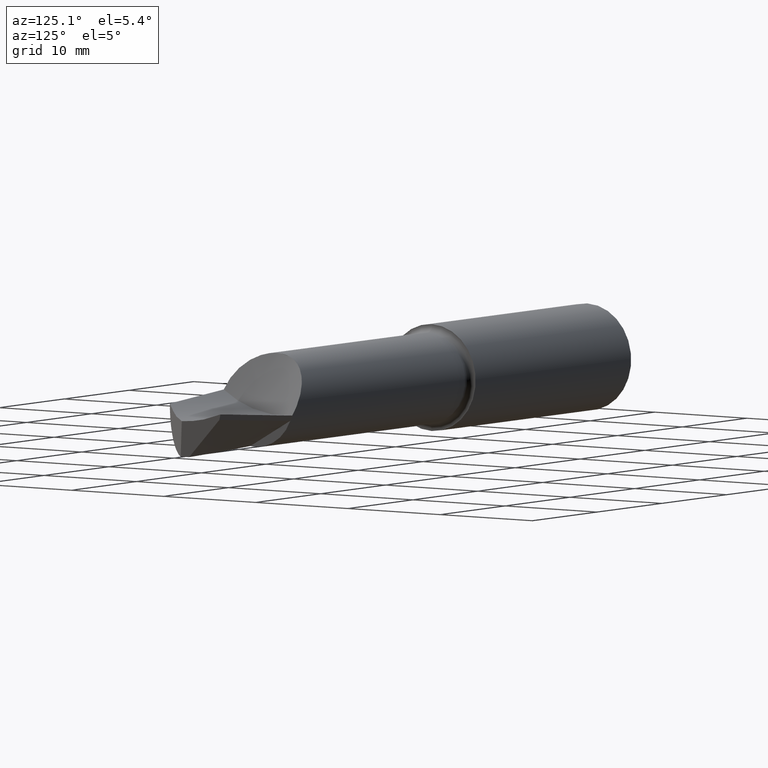
[diagram: clean part render]
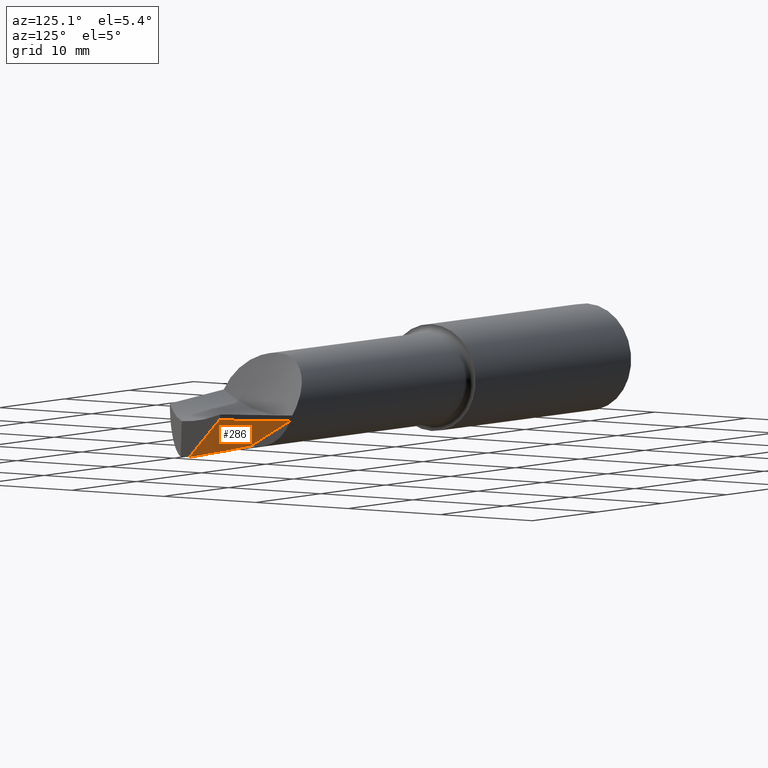
[diagram: same view with one face highlighted and labeled with its STEP entity id]
A machine part, auxiliary view. The second image highlights one B-rep face of the part: STEP entity #286.
In plain terms, the highlighted face is a freeform B-spline surface patch.
Its self-contained STEP definition (entity closure, byte-faithful):
#2 = CARTESIAN_POINT ( 'NONE',  ( -2.201205556468320612, 0.04404805174392815992, 0.2637359333928429028 ) ) ;
#7 = CARTESIAN_POINT ( 'NONE',  ( -0.5557836117043166713, -0.1918465372176925698, 0.1410986122333059978 ) ) ;
#29 = CARTESIAN_POINT ( 'NONE',  ( 2.029999999999999805, 0.03415864300232435147, -0.1261169229778109357 ) ) ;
#31 = EDGE_LOOP ( 'NONE', ( #83, #511, #666, #214, #54 ) ) ;
#43 = CARTESIAN_POINT ( 'NONE',  ( 2.479056345522095750, 0.03158535943386608924, -0.1600000000000001976 ) ) ;
#51 = CARTESIAN_POINT ( 'NONE',  ( 2.087992314429198526, -0.01486618112345823410, -0.1594768838119421661 ) ) ;
#54 = ORIENTED_EDGE ( 'NONE', *, *, #849, .F. ) ;
#60 = CARTESIAN_POINT ( 'NONE',  ( -1.966145278644757743, -0.03787375675492851701, -0.001615801746071663693 ) ) ;
#66 = CARTESIAN_POINT ( 'NONE',  ( -1.966145278644758188, 0.002243632532145724799, 0.2626065452853905136 ) ) ;
#70 = CARTESIAN_POINT ( 'NONE',  ( 2.264938125322896845, -0.04847510416526038673, -0.2055552617690547534 ) ) ;
#75 = CARTESIAN_POINT ( 'NONE',  ( 1.559758888707100333, 0.1147457709940158943, -0.09127471199649461742 ) ) ;
#83 = ORIENTED_EDGE ( 'NONE', *, *, #98, .F. ) ;
#98 = EDGE_CURVE ( 'NONE', #540, #402, #502, .T. ) ;
#129 = CARTESIAN_POINT ( 'NONE',  ( 0.8545780552342985281, 0.05695394078585683945, -0.1103443192637500736 ) ) ;
#132 = CARTESIAN_POINT ( 'NONE',  ( 1.559758888707099889, -0.1436434323715040096, -0.1595233250096872446 ) ) ;
#140 = CARTESIAN_POINT ( 'NONE',  ( -2.906385990919486684, -0.003112771623335201018, 0.02094499331524667454 ) ) ;
#141 = EDGE_CURVE ( 'NONE', #332, #540, #387, .T. ) ;
#167 = CARTESIAN_POINT ( 'NONE',  ( 2.295506850694329692, 0.01179554104795521759, -0.1600000000000001976 ) ) ;
#171 = CARTESIAN_POINT ( 'NONE',  ( 2.491267630952950007, 0.1267754620488672213, -0.06731619212322126344 ) ) ;
#173 = CARTESIAN_POINT ( 'NONE',  ( 2.029999999999999805, 0.07211162978868032591, -0.1043107480893994965 ) ) ;
#175 = CARTESIAN_POINT ( 'NONE',  ( 2.485134547629457735, 0.07941657633306051234, -0.1138983581142080093 ) ) ;
#187 = CARTESIAN_POINT ( 'NONE',  ( 2.030000000000000249, -0.02213587642817147969, -0.1584613611413102918 ) ) ;
#190 = VERTEX_POINT ( 'NONE', #818 ) ;
#193 = CARTESIAN_POINT ( 'NONE',  ( 0.6195177774123533654, -0.2195753196757056491, -0.03852676495521192152 ) ) ;
#199 = CARTESIAN_POINT ( 'NONE',  ( 0.6195177774123533654, 0.03790681170190750293, -0.1101214967121642158 ) ) ;
#214 = ORIENTED_EDGE ( 'NONE', *, *, #693, .T. ) ;
#259 = CARTESIAN_POINT ( 'NONE',  ( 2.029879444352586049, -0.08296511960219035697, -0.1952243736096476445 ) ) ;
#264 = CARTESIAN_POINT ( 'NONE',  ( -1.496024722997123746, -0.04544741256673074520, -0.02302504186817388304 ) ) ;
#271 = CARTESIAN_POINT ( 'NONE',  ( -1.260964445173648585, -0.1108984522853270621, 0.2236640909299403568 ) ) ;
#276 = CARTESIAN_POINT ( 'NONE',  ( -2.906381934304444581, 0.1649569871164089652, 0.2287319165144827415 ) ) ;
#281 = CARTESIAN_POINT ( 'NONE',  ( 2.500000000000000000, 0.1737516060753419855, -0.02000000000000000042 ) ) ;
#286 = ADVANCED_FACE ( 'NONE', ( #482 ), #794, .T. ) ;
#331 = CARTESIAN_POINT ( 'NONE',  ( -0.08566305605693792791, -0.01017841397115147421, -0.09365412058262138906 ) ) ;
#332 = VERTEX_POINT ( 'NONE', #421 ) ;
#339 = CARTESIAN_POINT ( 'NONE',  ( -2.671326112113873830, 0.1254329420345078605, 0.2467993252375397517 ) ) ;
#342 = CARTESIAN_POINT ( 'NONE',  ( 2.497456087975408412, 0.1736415813899027105, -0.02024803729317455059 ) ) ;
#344 = CARTESIAN_POINT ( 'NONE',  ( 0.8545780552342985281, -0.2077665825601127392, -0.07365783519246565936 ) ) ;
#346 = CARTESIAN_POINT ( 'NONE',  ( -0.7908438895279201741, -0.03928115723829588013, -0.06062728964153517308 ) ) ;
#387 = B_SPLINE_CURVE_WITH_KNOTS ( 'NONE', 3,
 ( #653, #167, #391, #442 ),
 .UNSPECIFIED., .F., .F.,
 ( 4, 4 ),
 ( 0.000000000000000000, 0.007033633581061733524 ),
 .UNSPECIFIED. ) ;
#391 = CARTESIAN_POINT ( 'NONE',  ( 2.387242545245383596, 0.02203300127090785168, -0.1600000000000001976 ) ) ;
#392 = B_SPLINE_CURVE_WITH_KNOTS ( 'NONE', 3,
 ( #342, #752, #806, #408 ),
 .UNSPECIFIED., .F., .F.,
 ( 4, 4 ),
 ( 0.0004509272984384687629, 0.08331185464154465536 ),
 .UNSPECIFIED. ) ;
#402 = VERTEX_POINT ( 'NONE', #562 ) ;
#406 = CARTESIAN_POINT ( 'NONE',  ( -0.5557836117043167823, -0.03198789906975515324, -0.07306970802803701426 ) ) ;
#408 = CARTESIAN_POINT ( 'NONE',  ( 2.030000000000000249, 0.1480175986258071008, -0.06069839007043474621 ) ) ;
#410 = CARTESIAN_POINT ( 'NONE',  ( -0.7908438895279200631, -0.1692113414281543049, 0.1729128585781273264 ) ) ;
#417 = CARTESIAN_POINT ( 'NONE',  ( -0.08566305605693796954, -0.2201275864905185842, 0.07170669264838248902 ) ) ;
#421 = CARTESIAN_POINT ( 'NONE',  ( 2.203948786660800074, -1.067128122525102820E-18, -0.1600000000000001976 ) ) ;
#442 = CARTESIAN_POINT ( 'NONE',  ( 2.479056345522095750, 0.03158535943386608924, -0.1600000000000001976 ) ) ;
#447 = CARTESIAN_POINT ( 'NONE',  ( 2.030000000000000249, 0.1100646149965093940, -0.08250457045360956587 ) ) ;
#451 = CARTESIAN_POINT ( 'NONE',  ( 2.030000000000000249, -0.02213587642817147969, -0.1584613611413102918 ) ) ;
#466 = CARTESIAN_POINT ( 'NONE',  ( 0.1493972217667058622, -0.2257616261417143277, 0.03418156597823445580 ) ) ;
#482 = FACE_OUTER_BOUND ( 'NONE', #31, .T. ) ;
#502 = B_SPLINE_CURVE_WITH_KNOTS ( 'NONE', 3,
 ( #43, #175, #171, #793 ),
 .UNSPECIFIED., .F., .F.,
 ( 4, 4 ),
 ( 4.448857579721098889E-05, 0.005127675119736437720 ),
 .UNSPECIFIED. ) ;
#511 = ORIENTED_EDGE ( 'NONE', *, *, #141, .F. ) ;
#531 = VERTEX_POINT ( 'NONE', #825 ) ;
#533 = CARTESIAN_POINT ( 'NONE',  ( 2.145972836415287244, -0.007469114906849857148, -0.1600000000000001421 ) ) ;
#540 = VERTEX_POINT ( 'NONE', #892 ) ;
#543 = CARTESIAN_POINT ( 'NONE',  ( 2.500000000000000000, -0.01359839392465584870, -0.2073499999999999510 ) ) ;
#548 = CARTESIAN_POINT ( 'NONE',  ( -3.141446667761254918, 0.1991586739133277828, 0.2022514740950265288 ) ) ;
#562 = CARTESIAN_POINT ( 'NONE',  ( 2.497456087975408412, 0.1736415813899027105, -0.02024803729317455059 ) ) ;
#578 = CARTESIAN_POINT ( 'NONE',  ( 2.030000000000000249, 0.1480175986258071008, -0.06069839007043474621 ) ) ;
#604 = CARTESIAN_POINT ( 'NONE',  ( -2.671326112113873830, -0.01348536854288557955, 0.01849129519839664074 ) ) ;
#609 = CARTESIAN_POINT ( 'NONE',  ( 0.1493972217667058899, 0.004329261635149571005, -0.1017634117003439476 ) ) ;
#611 = EDGE_CURVE ( 'NONE', #190, #332, #815, .T. ) ;
#615 = CARTESIAN_POINT ( 'NONE',  ( 2.264936955703512389, 0.1636016042029876938, -0.04293213474631984300 ) ) ;
#624 = CARTESIAN_POINT ( 'NONE',  ( -2.201205556468320612, -0.03088075054255186996, 0.007204204006480083473 ) ) ;
#653 = CARTESIAN_POINT ( 'NONE',  ( 2.203948786660800074, -1.067128122525102820E-18, -0.1600000000000001976 ) ) ;
#666 = ORIENTED_EDGE ( 'NONE', *, *, #611, .F. ) ;
#682 = CARTESIAN_POINT ( 'NONE',  ( -1.260964445173648585, -0.04600744313430748383, -0.03558870177511543748 ) ) ;
#686 = CARTESIAN_POINT ( 'NONE',  ( -1.496024722997123524, -0.07525414341635636162, 0.2425581134524845139 ) ) ;
#693 = EDGE_CURVE ( 'NONE', #190, #531, #883, .T. ) ;
#725 = CARTESIAN_POINT ( 'NONE',  ( 2.030000000000000249, -0.003371036232000557218, -0.1476798824253084119 ) ) ;
#750 = CARTESIAN_POINT ( 'NONE',  ( 1.324698610885074235, 0.09538978194470938698, -0.1009276724151043358 ) ) ;
#752 = CARTESIAN_POINT ( 'NONE',  ( 2.341635779685364405, 0.1668913797430702783, -0.03543228680233295735 ) ) ;
#758 = CARTESIAN_POINT ( 'NONE',  ( 2.029879444352586049, 0.1488699054047887271, -0.06227560613148143409 ) ) ;
#793 = CARTESIAN_POINT ( 'NONE',  ( 2.497456087975408412, 0.1736415813899027105, -0.02024803729317455059 ) ) ;
#794 = B_SPLINE_SURFACE_WITH_KNOTS ( 'NONE', 1, 3, ( 
 ( #281, #615, #758, #75, #750, #129, #199, #609, #331, #406, #346, #682, #264, #60, #624, #604, #140, #887 ),
 ( #543, #70, #259, #132, #882, #344, #193, #466, #417, #7, #410, #271, #686, #66, #2, #339, #276, #548 ) ),
 .UNSPECIFIED., .F., .F., .F.,
 ( 2, 2 ),
 ( 4, 2, 2, 2, 2, 2, 2, 2, 4 ),
 ( 0.000000000000000000, 1.000000000000000000 ),
 ( 0.000000000000000000, 0.1250000000000000000, 0.2500000000000000000, 0.3750000000000000000, 0.5000000000000000000, 0.6250000000000000000, 0.7500000000000000000, 0.8750000000000000000, 1.000000000000000000 ),
 .UNSPECIFIED. ) ;
#801 = CARTESIAN_POINT ( 'NONE',  ( 2.029999999999999805, 0.01539380357810080785, -0.1368984030373639749 ) ) ;
#806 = CARTESIAN_POINT ( 'NONE',  ( 2.185817889529216185, 0.1581314588010464539, -0.04903761707410383974 ) ) ;
#815 = B_SPLINE_CURVE_WITH_KNOTS ( 'NONE', 3,
 ( #187, #51, #533, #841 ),
 .UNSPECIFIED., .F., .F.,
 ( 4, 4 ),
 ( 7.640432587545480923E-10, 0.004454102412321751109 ),
 .UNSPECIFIED. ) ;
#818 = CARTESIAN_POINT ( 'NONE',  ( 2.030000000000000249, -0.02213587642817147969, -0.1584613611413102918 ) ) ;
#825 = CARTESIAN_POINT ( 'NONE',  ( 2.030000000000000249, 0.1480175986258071008, -0.06069839007043474621 ) ) ;
#841 = CARTESIAN_POINT ( 'NONE',  ( 2.203948786660800074, -1.067128122525102820E-18, -0.1600000000000001976 ) ) ;
#849 = EDGE_CURVE ( 'NONE', #402, #531, #392, .T. ) ;
#882 = CARTESIAN_POINT ( 'NONE',  ( 1.324698610885074235, -0.1697843696101999644, -0.1341770775393101023 ) ) ;
#883 = B_SPLINE_CURVE_WITH_KNOTS ( 'NONE', 3,
 ( #451, #725, #801, #29, #173, #447, #578 ),
 .UNSPECIFIED., .F., .F.,
 ( 4, 3, 4 ),
 ( 0.001744990834029503312, 0.003394081916541460096, 0.006729465217678537101 ),
 .UNSPECIFIED. ) ;
#887 = CARTESIAN_POINT ( 'NONE',  ( -3.141446667761254918, 0.007011474672976874926, 0.01982477971043797305 ) ) ;
#892 = CARTESIAN_POINT ( 'NONE',  ( 2.479056345522095750, 0.03158535943386608924, -0.1600000000000001976 ) ) ;